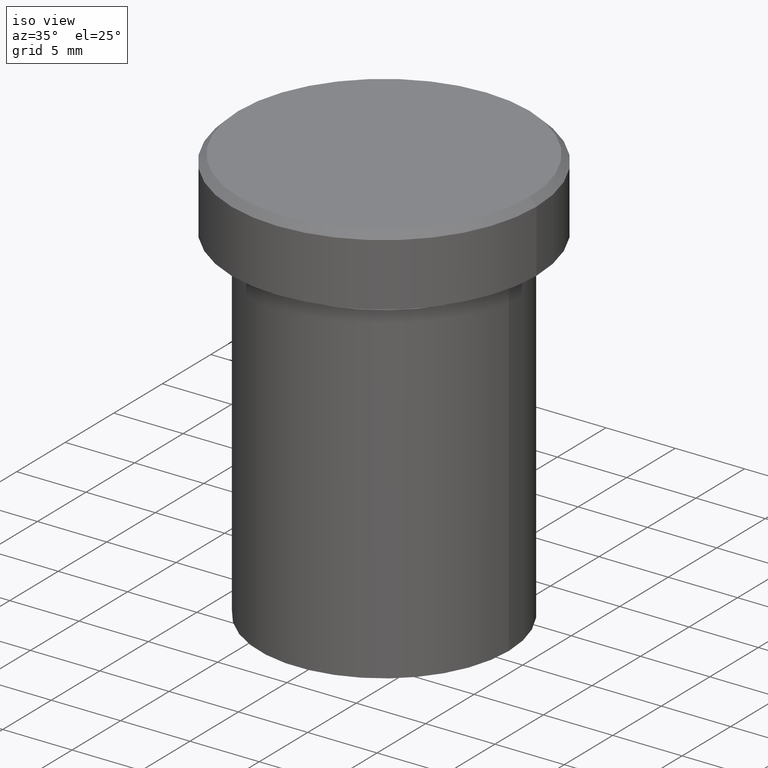
[diagram: clean part render]
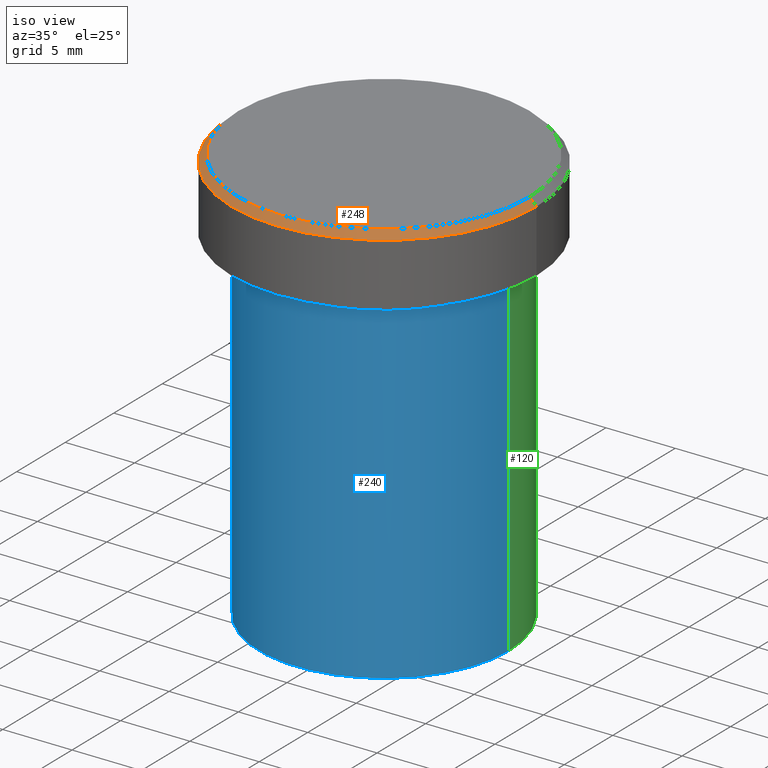
[diagram: same view with three faces highlighted in distinct colors, each labeled with its STEP entity id]
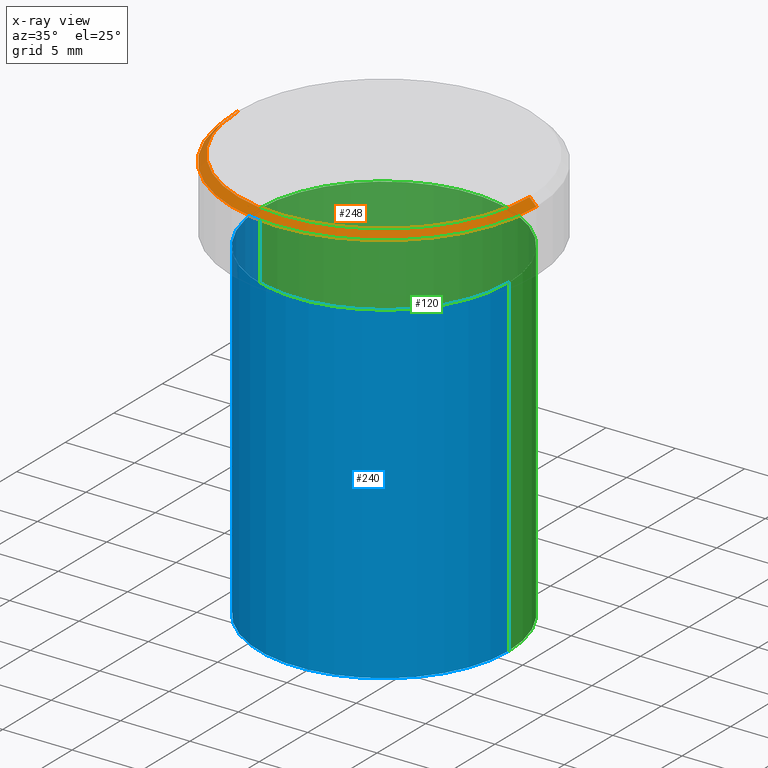
[diagram: x-ray of the same camera — body ghosted, the three highlighted faces saturated]
A machine part, iso view with three faces highlighted in distinct colors.
The next image is the same camera in x-ray (body ghosted, the three faces saturated) — at least one of them is partly hidden behind the body in this view.
Their STEP definitions:

[orange] entity #248 — the highlighted conical surface has half-angle 45 deg.
#9 = DIRECTION ( 'NONE',  ( 0.7071067811865474617, 8.659560562354932858E-17, -0.7071067811865474617 ) ) ;
#10 = AXIS2_PLACEMENT_3D ( 'NONE', #296, #134, #262 ) ;
#19 = CONICAL_SURFACE ( 'NONE', #66, 10.49999999999999822, 0.7853981633974482790 ) ;
#20 = DIRECTION ( 'NONE',  ( -0.7071067811865474617, 0.000000000000000000, -0.7071067811865474617 ) ) ;
#47 = VECTOR ( 'NONE', #9, 1000.000000000000114 ) ;
#54 = CARTESIAN_POINT ( 'NONE',  ( -10.49999999999999822, 0.000000000000000000, 0.000000000000000000 ) ) ;
#57 = DIRECTION ( 'NONE',  ( 0.000000000000000000, 0.000000000000000000, -1.000000000000000000 ) ) ;
#66 = AXIS2_PLACEMENT_3D ( 'NONE', #213, #57, #220 ) ;
#70 = VERTEX_POINT ( 'NONE', #253 ) ;
#74 = CARTESIAN_POINT ( 'NONE',  ( -10.49999999999999822, 0.000000000000000000, 0.000000000000000000 ) ) ;
#76 = CARTESIAN_POINT ( 'NONE',  ( -11.00000000000000000, 1.347111479062088405E-15, -0.5000000000000004441 ) ) ;
#77 = CIRCLE ( 'NONE', #10, 11.00000000000000000 ) ;
#79 = DIRECTION ( 'NONE',  ( -0.000000000000000000, -0.000000000000000000, 1.000000000000000000 ) ) ;
#82 = AXIS2_PLACEMENT_3D ( 'NONE', #374, #79, #407 ) ;
#84 = VERTEX_POINT ( 'NONE', #260 ) ;
#94 = ORIENTED_EDGE ( 'NONE', *, *, #229, .T. ) ;
#130 = LINE ( 'NONE', #258, #47 ) ;
#134 = DIRECTION ( 'NONE',  ( 0.000000000000000000, 0.000000000000000000, -1.000000000000000000 ) ) ;
#146 = ORIENTED_EDGE ( 'NONE', *, *, #210, .F. ) ;
#160 = EDGE_CURVE ( 'NONE', #70, #188, #77, .T. ) ;
#175 = VERTEX_POINT ( 'NONE', #74 ) ;
#188 = VERTEX_POINT ( 'NONE', #76 ) ;
#210 = EDGE_CURVE ( 'NONE', #175, #84, #350, .T. ) ;
#213 = CARTESIAN_POINT ( 'NONE',  ( 0.000000000000000000, 0.000000000000000000, 0.000000000000000000 ) ) ;
#220 = DIRECTION ( 'NONE',  ( -1.000000000000000000, 0.000000000000000000, 0.000000000000000000 ) ) ;
#229 = EDGE_CURVE ( 'NONE', #175, #188, #400, .T. ) ;
#241 = ORIENTED_EDGE ( 'NONE', *, *, #160, .F. ) ;
#248 = ADVANCED_FACE ( 'NONE', ( #379 ), #19, .T. ) ;
#253 = CARTESIAN_POINT ( 'NONE',  ( 11.00000000000000000, 0.000000000000000000, -0.5000000000000004441 ) ) ;
#258 = CARTESIAN_POINT ( 'NONE',  ( 10.49999999999999822, 1.285879139104720633E-15, 0.000000000000000000 ) ) ;
#260 = CARTESIAN_POINT ( 'NONE',  ( 10.49999999999999822, 1.316495309083404420E-15, 0.000000000000000000 ) ) ;
#262 = DIRECTION ( 'NONE',  ( 1.000000000000000000, 0.000000000000000000, 0.000000000000000000 ) ) ;
#266 = ORIENTED_EDGE ( 'NONE', *, *, #359, .F. ) ;
#296 = CARTESIAN_POINT ( 'NONE',  ( 0.000000000000000000, 0.000000000000000000, -0.5000000000000004441 ) ) ;
#350 = CIRCLE ( 'NONE', #82, 10.49999999999999822 ) ;
#359 = EDGE_CURVE ( 'NONE', #84, #70, #130, .T. ) ;
#364 = EDGE_LOOP ( 'NONE', ( #266, #146, #94, #241 ) ) ;
#374 = CARTESIAN_POINT ( 'NONE',  ( 0.000000000000000000, 0.000000000000000000, 0.000000000000000000 ) ) ;
#379 = FACE_OUTER_BOUND ( 'NONE', #364, .T. ) ;
#398 = VECTOR ( 'NONE', #20, 1000.000000000000114 ) ;
#400 = LINE ( 'NONE', #54, #398 ) ;
#407 = DIRECTION ( 'NONE',  ( 1.000000000000000000, 0.000000000000000000, 0.000000000000000000 ) ) ;

[blue] entity #240 — the highlighted cylindrical surface (partial cylindrical patch) has radius 9 mm, axis along (-0, -0, 1).
#18 = EDGE_CURVE ( 'NONE', #368, #246, #345, .T. ) ;
#22 = DIRECTION ( 'NONE',  ( 1.000000000000000000, 0.000000000000000000, 0.000000000000000000 ) ) ;
#25 = CARTESIAN_POINT ( 'NONE',  ( 9.000000000000000000, 0.000000000000000000, -6.000000000000000000 ) ) ;
#28 = ORIENTED_EDGE ( 'NONE', *, *, #389, .F. ) ;
#34 = AXIS2_PLACEMENT_3D ( 'NONE', #68, #192, #87 ) ;
#40 = CARTESIAN_POINT ( 'NONE',  ( -9.000000000000000000, 1.102182119232617714E-15, -30.00000000000000000 ) ) ;
#68 = CARTESIAN_POINT ( 'NONE',  ( 0.000000000000000000, 0.000000000000000000, -6.000000000000000000 ) ) ;
#71 = DIRECTION ( 'NONE',  ( 1.000000000000000000, 0.000000000000000000, 0.000000000000000000 ) ) ;
#72 = AXIS2_PLACEMENT_3D ( 'NONE', #91, #386, #71 ) ;
#87 = DIRECTION ( 'NONE',  ( 1.000000000000000000, 0.000000000000000000, 0.000000000000000000 ) ) ;
#91 = CARTESIAN_POINT ( 'NONE',  ( 0.000000000000000000, 0.000000000000000000, -30.00000000000000000 ) ) ;
#111 = CYLINDRICAL_SURFACE ( 'NONE', #356, 9.000000000000000000 ) ;
#115 = CIRCLE ( 'NONE', #34, 9.000000000000000000 ) ;
#133 = EDGE_CURVE ( 'NONE', #408, #368, #278, .T. ) ;
#135 = VECTOR ( 'NONE', #242, 1000.000000000000000 ) ;
#144 = FACE_OUTER_BOUND ( 'NONE', #311, .T. ) ;
#155 = CARTESIAN_POINT ( 'NONE',  ( 9.000000000000000000, 0.000000000000000000, -30.00000000000000000 ) ) ;
#158 = VECTOR ( 'NONE', #225, 1000.000000000000000 ) ;
#186 = CARTESIAN_POINT ( 'NONE',  ( -9.000000000000000000, 1.102182119232617714E-15, -6.000000000000000000 ) ) ;
#192 = DIRECTION ( 'NONE',  ( -0.000000000000000000, -0.000000000000000000, 1.000000000000000000 ) ) ;
#221 = EDGE_CURVE ( 'NONE', #408, #352, #308, .T. ) ;
#225 = DIRECTION ( 'NONE',  ( -0.000000000000000000, -0.000000000000000000, 1.000000000000000000 ) ) ;
#240 = ADVANCED_FACE ( 'NONE', ( #144 ), #111, .T. ) ;
#242 = DIRECTION ( 'NONE',  ( -0.000000000000000000, -0.000000000000000000, 1.000000000000000000 ) ) ;
#245 = CARTESIAN_POINT ( 'NONE',  ( -9.000000000000000000, 1.102182119232617714E-15, 0.000000000000000000 ) ) ;
#246 = VERTEX_POINT ( 'NONE', #25 ) ;
#267 = ORIENTED_EDGE ( 'NONE', *, *, #133, .T. ) ;
#277 = ORIENTED_EDGE ( 'NONE', *, *, #18, .T. ) ;
#278 = CIRCLE ( 'NONE', #72, 9.000000000000000000 ) ;
#281 = CARTESIAN_POINT ( 'NONE',  ( 9.000000000000000000, 0.000000000000000000, 0.000000000000000000 ) ) ;
#308 = LINE ( 'NONE', #245, #135 ) ;
#311 = EDGE_LOOP ( 'NONE', ( #373, #267, #277, #28 ) ) ;
#345 = LINE ( 'NONE', #281, #158 ) ;
#352 = VERTEX_POINT ( 'NONE', #186 ) ;
#356 = AXIS2_PLACEMENT_3D ( 'NONE', #367, #372, #22 ) ;
#367 = CARTESIAN_POINT ( 'NONE',  ( 0.000000000000000000, 0.000000000000000000, 0.000000000000000000 ) ) ;
#368 = VERTEX_POINT ( 'NONE', #155 ) ;
#372 = DIRECTION ( 'NONE',  ( -0.000000000000000000, -0.000000000000000000, 1.000000000000000000 ) ) ;
#373 = ORIENTED_EDGE ( 'NONE', *, *, #221, .F. ) ;
#386 = DIRECTION ( 'NONE',  ( -0.000000000000000000, -0.000000000000000000, 1.000000000000000000 ) ) ;
#389 = EDGE_CURVE ( 'NONE', #352, #246, #115, .T. ) ;
#408 = VERTEX_POINT ( 'NONE', #40 ) ;

[green] entity #120 — the highlighted cylindrical surface (partial cylindrical patch) has radius 9 mm, axis along (-0, -0, 1).
#6 = DIRECTION ( 'NONE',  ( 1.000000000000000000, 0.000000000000000000, 0.000000000000000000 ) ) ;
#8 = AXIS2_PLACEMENT_3D ( 'NONE', #316, #320, #64 ) ;
#18 = EDGE_CURVE ( 'NONE', #368, #246, #345, .T. ) ;
#25 = CARTESIAN_POINT ( 'NONE',  ( 9.000000000000000000, 0.000000000000000000, -6.000000000000000000 ) ) ;
#30 = CARTESIAN_POINT ( 'NONE',  ( 0.000000000000000000, 0.000000000000000000, 0.000000000000000000 ) ) ;
#32 = CARTESIAN_POINT ( 'NONE',  ( 0.000000000000000000, 0.000000000000000000, -6.000000000000000000 ) ) ;
#35 = AXIS2_PLACEMENT_3D ( 'NONE', #32, #348, #6 ) ;
#39 = ORIENTED_EDGE ( 'NONE', *, *, #18, .F. ) ;
#40 = CARTESIAN_POINT ( 'NONE',  ( -9.000000000000000000, 1.102182119232617714E-15, -30.00000000000000000 ) ) ;
#55 = EDGE_LOOP ( 'NONE', ( #275, #58, #105, #39 ) ) ;
#58 = ORIENTED_EDGE ( 'NONE', *, *, #221, .T. ) ;
#64 = DIRECTION ( 'NONE',  ( 1.000000000000000000, 0.000000000000000000, 0.000000000000000000 ) ) ;
#86 = CYLINDRICAL_SURFACE ( 'NONE', #215, 9.000000000000000000 ) ;
#105 = ORIENTED_EDGE ( 'NONE', *, *, #322, .F. ) ;
#120 = ADVANCED_FACE ( 'NONE', ( #315 ), #86, .T. ) ;
#135 = VECTOR ( 'NONE', #242, 1000.000000000000000 ) ;
#155 = CARTESIAN_POINT ( 'NONE',  ( 9.000000000000000000, 0.000000000000000000, -30.00000000000000000 ) ) ;
#158 = VECTOR ( 'NONE', #225, 1000.000000000000000 ) ;
#174 = CIRCLE ( 'NONE', #8, 9.000000000000000000 ) ;
#186 = CARTESIAN_POINT ( 'NONE',  ( -9.000000000000000000, 1.102182119232617714E-15, -6.000000000000000000 ) ) ;
#215 = AXIS2_PLACEMENT_3D ( 'NONE', #30, #319, #310 ) ;
#221 = EDGE_CURVE ( 'NONE', #408, #352, #308, .T. ) ;
#225 = DIRECTION ( 'NONE',  ( -0.000000000000000000, -0.000000000000000000, 1.000000000000000000 ) ) ;
#242 = DIRECTION ( 'NONE',  ( -0.000000000000000000, -0.000000000000000000, 1.000000000000000000 ) ) ;
#245 = CARTESIAN_POINT ( 'NONE',  ( -9.000000000000000000, 1.102182119232617714E-15, 0.000000000000000000 ) ) ;
#246 = VERTEX_POINT ( 'NONE', #25 ) ;
#275 = ORIENTED_EDGE ( 'NONE', *, *, #302, .T. ) ;
#281 = CARTESIAN_POINT ( 'NONE',  ( 9.000000000000000000, 0.000000000000000000, 0.000000000000000000 ) ) ;
#302 = EDGE_CURVE ( 'NONE', #368, #408, #174, .T. ) ;
#308 = LINE ( 'NONE', #245, #135 ) ;
#310 = DIRECTION ( 'NONE',  ( 1.000000000000000000, 0.000000000000000000, 0.000000000000000000 ) ) ;
#315 = FACE_OUTER_BOUND ( 'NONE', #55, .T. ) ;
#316 = CARTESIAN_POINT ( 'NONE',  ( 0.000000000000000000, 0.000000000000000000, -30.00000000000000000 ) ) ;
#319 = DIRECTION ( 'NONE',  ( -0.000000000000000000, -0.000000000000000000, 1.000000000000000000 ) ) ;
#320 = DIRECTION ( 'NONE',  ( -0.000000000000000000, -0.000000000000000000, 1.000000000000000000 ) ) ;
#322 = EDGE_CURVE ( 'NONE', #246, #352, #392, .T. ) ;
#345 = LINE ( 'NONE', #281, #158 ) ;
#348 = DIRECTION ( 'NONE',  ( -0.000000000000000000, -0.000000000000000000, 1.000000000000000000 ) ) ;
#352 = VERTEX_POINT ( 'NONE', #186 ) ;
#368 = VERTEX_POINT ( 'NONE', #155 ) ;
#392 = CIRCLE ( 'NONE', #35, 9.000000000000000000 ) ;
#408 = VERTEX_POINT ( 'NONE', #40 ) ;